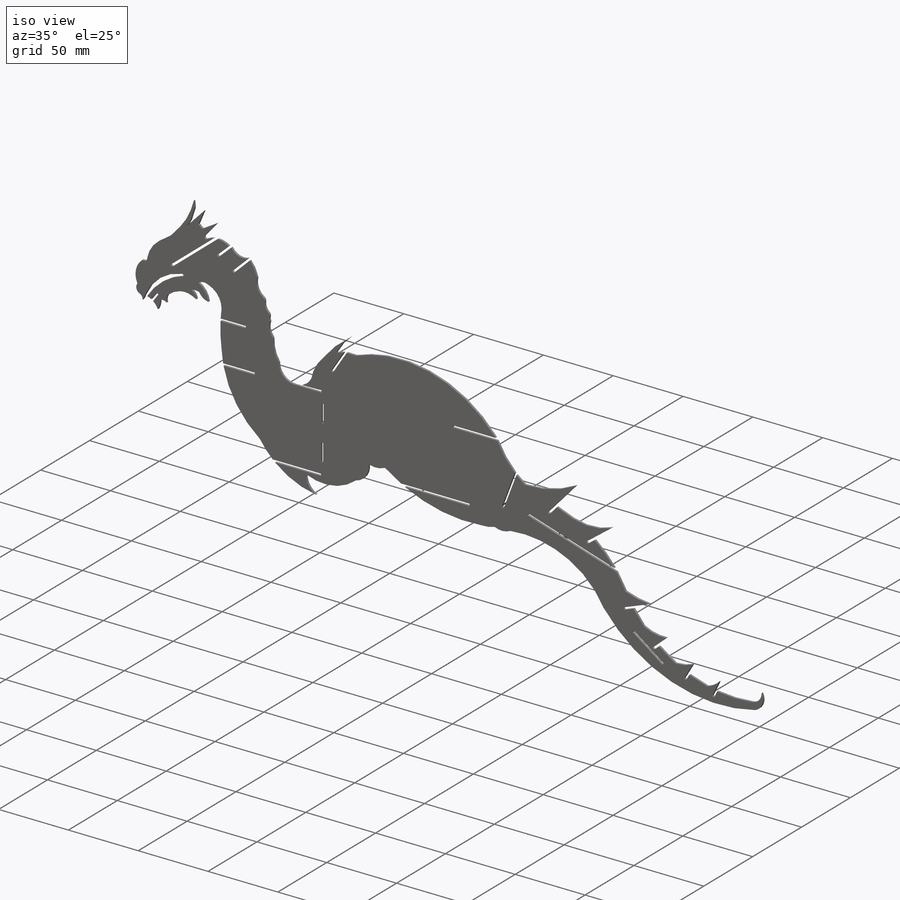
[diagram: iso view]
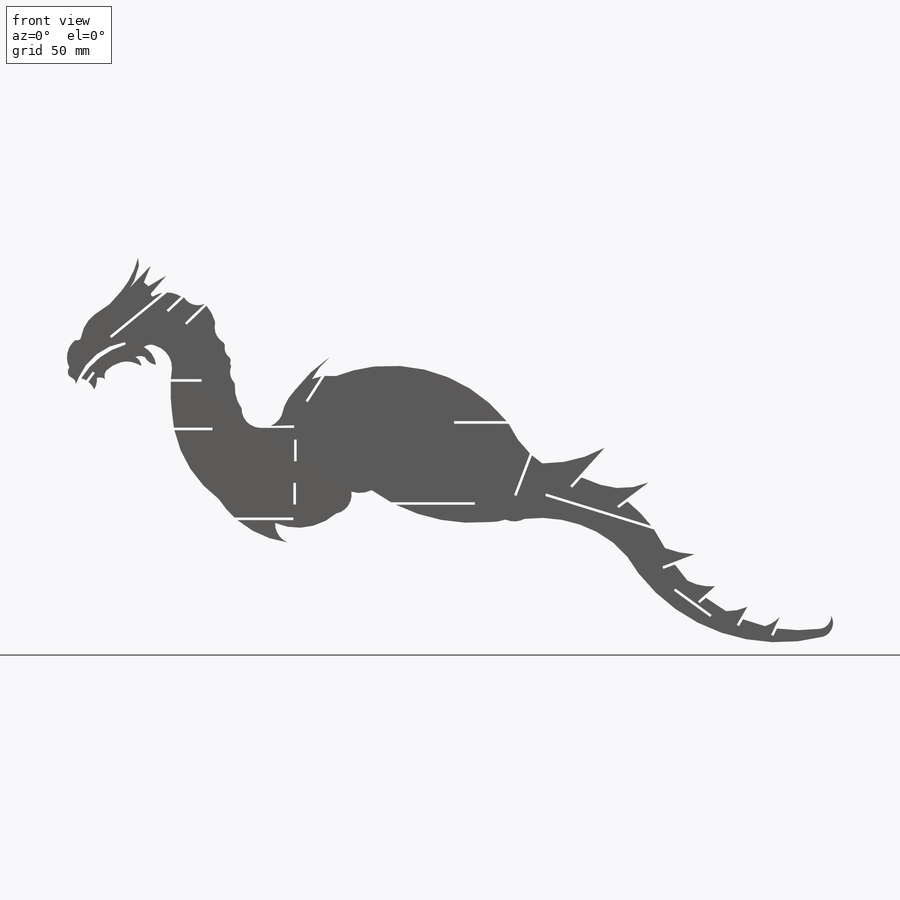
[diagram: front view]
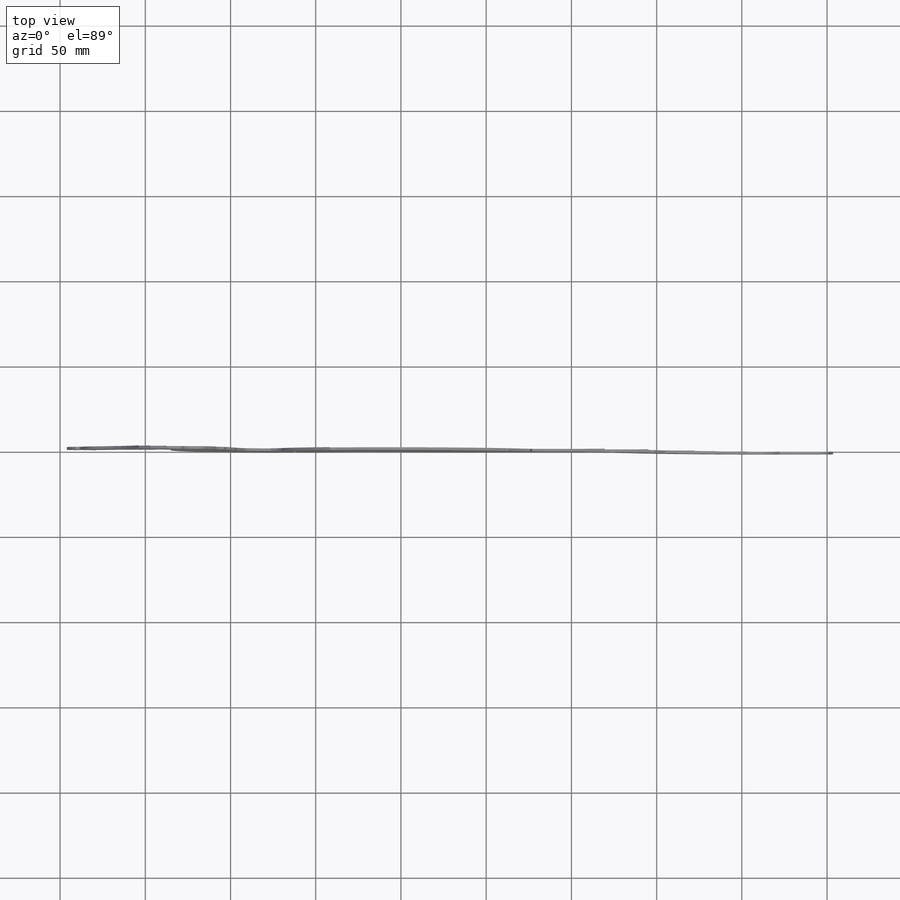
[diagram: top view]
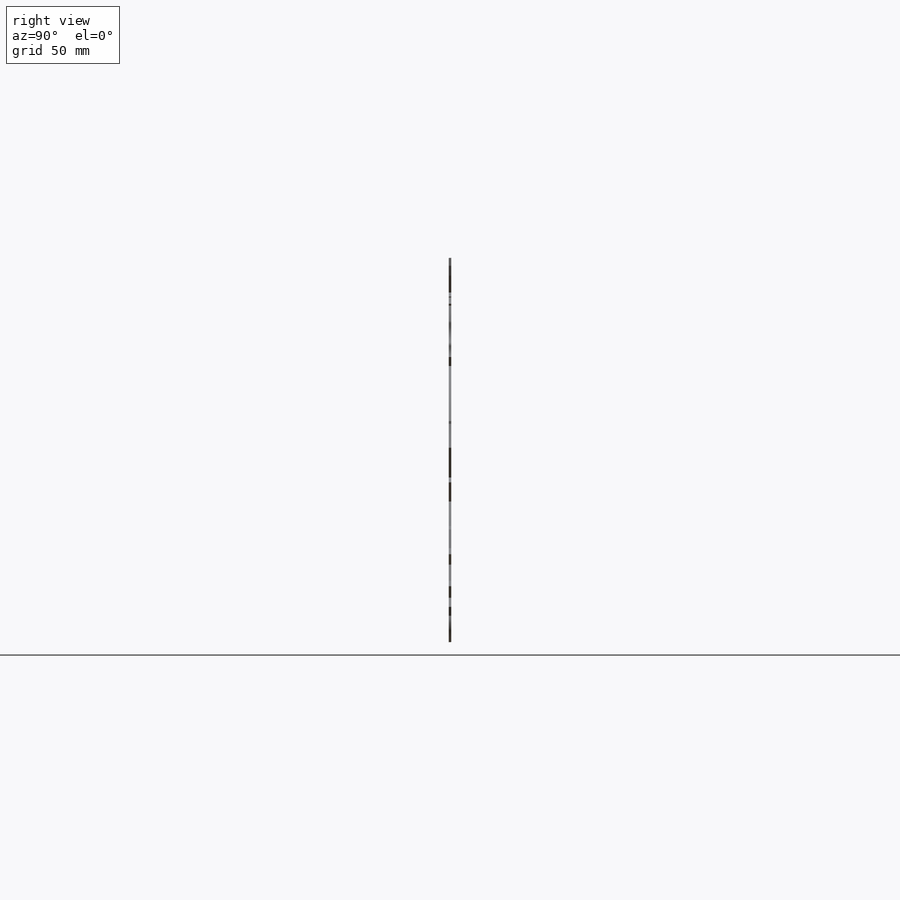
[diagram: right view]
SOLIDWORKS PART (.sldprt)
format: sldprt  version: not decoded by parser v0  size: 566,272 bytes
history: native  units: mm
features: sketch x10, cut_extrude x7, extrude x3, material x1 (+11 scaffold rows collapsed)
feature tree (32):
  scaffold x11  (default folders/planes/origin — collapsed)
  material  "Material <not specified>"
  sketch  "Sketch1"  dims[c1.D18=2.54mm c1.D19=2.54mm c1.D20=2.54mm c1.D21=2.54mm c1.D4=2.54mm c1.D22=2.54mm c1.D5=2.54mm c1.D1=1.524mm c2.D20=6.35mm c2.D5=16.51mm c2.D33=6.35mm c2.D35=6.096mm c2.D28=6.096mm c2.D1=1.524mm c2.D2=1.524mm c2.D3=1.524mm c2.D4=0.762mm c3.D5=0.762mm c3.D6=0.762mm c3.D7=0.762mm c3.D8=0.762mm c3.D9=0.762mm c3.D10=0.762mm c3.D11=0.762mm c3.D12=0.762mm c3.D13=0.762mm c3.D14=0.762mm c3.D15=0.762mm c3.D16=0.762mm c3.D17=0.762mm c3.D18=0.762mm c3.D19=0.762mm c3.D20=0.762mm c3.D21=0.762mm c4.D20=0.762mm c4.D21=0.762mm c5.D20=0.762mm c5.D21=0.762mm c5.D22=0.762mm c5.D23=0.762mm c5.D24=0.762mm c5.D25=0.762mm c5.D26=0.762mm c5.D27=0.762mm c5.D28=0.762mm c5.D29=0.762mm c5.D30=0.762mm c5.D31=0.762mm c5.D32=0.762mm c5.D33=0.762mm c5.D34=0.762mm c5.D35=0.762mm c5.D36=0.762mm c5.D37=0.762mm c5.D38=0.762mm c5.D39=0.762mm c5.D40=0.762mm c5.D41=0.762mm c5.D42=0.762mm c5.D43=0.762mm c6.D34=1.524mm c6.D5=1.524mm c6.D35=1.524mm c6.D44=1.524mm c6.D45=1.524mm c6.D46=1.524mm c7.D35=0.762mm c7.D44=0.762mm c7.D45=0.762mm c7.D46=0.762mm c7.D47=0.762mm c7.D5=1.524mm c7.D16=0.762mm c7.D17=0.762mm c7.D18=1.524mm c7.D19=1.524mm c8.D35=8.636mm c8.D19=1.524mm c9.D35=1.524mm c9.D32=1.524mm c9.D33=0.762mm c10.D35=0.762mm c10.D33=1.524mm]
  extrude  "Boss-Extrude1"  Depth=1.524mm
  sketch  "Sketch2"  dims[D1=25.4mm]
  cut_extrude  "Cut-Extrude1"  Depth=2.54mm
  sketch  "Sketch3"  dims[c1.D1=19.05mm c1.D2=19.05mm c1.D3=12.7mm c2.D1=1.524mm]
  cut_extrude  "Cut-Extrude2"  Depth=1.524mm
  sketch  "Sketch4"  dims[D1=50.8mm D2=35.052mm]
  cut_extrude  "Cut-Extrude3"  Depth=2.54mm
  sketch  "Sketch5"  dims[c1.D1=0.762mm c1.D2=0.762mm c2.D1=0.762mm c2.D2=0.762mm c2.D3=0.762mm c2.D4=0.762mm]
  cut_extrude  "Cut-Extrude5"  Depth=1.524mm
  sketch  "Sketch6"  dims[D1=0.762mm D2=0.762mm D3=0.762mm D4=0.762mm]
  cut_extrude  "Cut-Extrude6"  Depth=1.524mm
  sketch  "Sketch7"  dims[D1=2.286mm]
  extrude  "Boss-Extrude3"  Depth=1.524mm
  sketch  "Sketch11"  dims[D1=1.524mm]
  cut_extrude  "Cut-Extrude11"  Depth=1.524mm
  sketch  "Sketch12"
  extrude  "Boss-Extrude4"  Depth=1.524mm
  sketch  "Sketch13"  dims[D1=0.762mm D2=0.762mm]
  cut_extrude  "Cut-Extrude12"  Depth=1.524mm
decode coverage: 19 of 20 modeling features carry decoded parameters
note: suppression state not decoded; provenance and decode notes live in map.json
